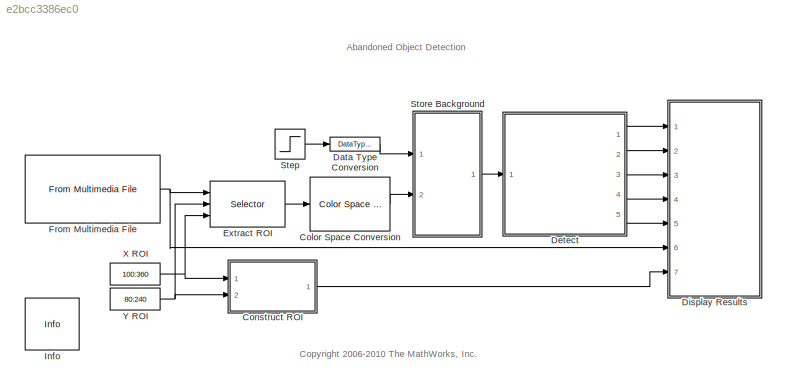
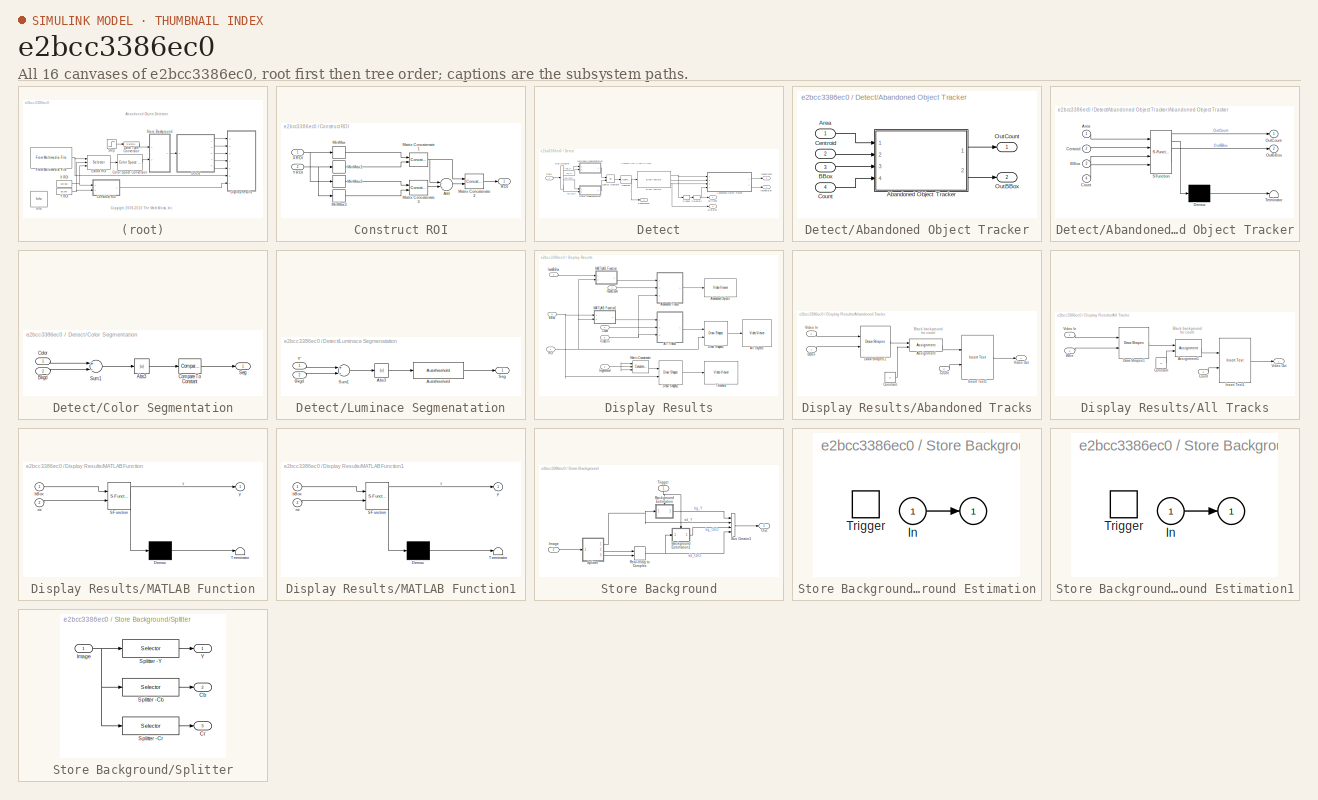
[diagram: thumbnail index - all 16 canvases of the model, root first then tree order]
MODEL slx_e2bcc3386ec0
KIND model
WORKSPACE source: MATLAB code (in-file)
WORKSPACE maxNumObj = 200
BLOCK [Reference] Color Space Conversion  REF=visionconversions/Color Space
 Conversion
  Ports = [1, 1]
  SourceBlock = visionconversions/Color Space\n Conversion
  SourceType = Color Space Conversion
  conversion = Obsolete
  conversionActive = R'G'B' to Y'CbCr
  imagePorts = One multidimensional signal
  rec = Rec. 601 (SDTV)
  sys = 1125/60/2:1
  wp_str = D65
BLOCK [SubSystem] Construct ROI
  FunctionWithSeparateData = off
  MaskHideContents = off
  MinAlgLoopOccurrences = off
  Opaque = off
  Ports = [2, 1]
  PropExecContextOutsideSubsystem = off
  RTWSystemCode = Auto
  RequestExecContextInheritance = off
BLOCK [Sum] Construct ROI/Add
  InputSameDT = off
  Inputs = -+
  OutDataTypeStr = Inherit: Inherit via internal rule
  Ports = [2, 1]
  SaturateOnIntegerOverflow = off
BLOCK [Concatenate] Construct ROI/Matrix Concatenate1
  ConcatenateDimension = 2
  Mode = Multidimensional array
  Ports = [2, 1]
BLOCK [Concatenate] Construct ROI/Matrix Concatenate2
  ConcatenateDimension = 2
  Mode = Multidimensional array
  Ports = [2, 1]
BLOCK [Concatenate] Construct ROI/Matrix Concatenate3
  ConcatenateDimension = 2
  Mode = Multidimensional array
  Ports = [2, 1]
BLOCK [MinMax] Construct ROI/MinMax
  InputSameDT = off
  Ports = [1, 1]
  SaturateOnIntegerOverflow = off
BLOCK [MinMax] Construct ROI/MinMax1
  InputSameDT = off
  Ports = [1, 1]
  SaturateOnIntegerOverflow = off
BLOCK [MinMax] Construct ROI/MinMax2
  Function = max
  InputSameDT = off
  Ports = [1, 1]
  SaturateOnIntegerOverflow = off
BLOCK [MinMax] Construct ROI/MinMax3
  Function = max
  InputSameDT = off
  Ports = [1, 1]
  SaturateOnIntegerOverflow = off
BLOCK [Outport] Construct ROI/ROI
  IconDisplay = Port number
BLOCK [Inport] Construct ROI/X ROI 
  IconDisplay = Port number
BLOCK [Inport] Construct ROI/Y ROI
  IconDisplay = Port number
  Port = 2
BLOCK [DataTypeConversion] Data Type Conversion
  OutDataTypeStr = boolean
  RndMeth = Floor
  SaturateOnIntegerOverflow = off
BLOCK [SubSystem] Detect
  FunctionWithSeparateData = off
  MaskHideContents = off
  MinAlgLoopOccurrences = off
  Opaque = off
  Ports = [1, 5]
  PropExecContextOutsideSubsystem = off
  RTWMemSecDataConstants = Default
  RTWMemSecDataInternal = Default
  RTWMemSecDataParameters = Default
  RTWMemSecFuncExecute = Default
  RTWMemSecFuncInitTerm = Default
  RTWSystemCode = Auto
  RequestExecContextInheritance = off
  TreatAsAtomicUnit = on
BLOCK [SubSystem] Detect/Abandoned Object Tracker
  FunctionWithSeparateData = off
  MaskHideContents = off
  MinAlgLoopOccurrences = off
  Opaque = off
  Ports = [4, 2]
  PropExecContextOutsideSubsystem = off
  RTWSystemCode = Auto
  RequestExecContextInheritance = off
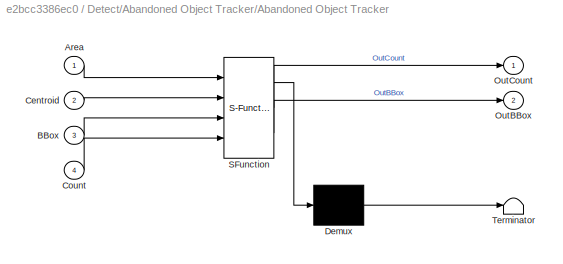
BLOCK [SubSystem] Detect/Abandoned Object Tracker/Abandoned Object Tracker
  ErrorFcn = Stateflow.Translate.translate
  FunctionWithSeparateData = off
  MaskHideContents = off
  MinAlgLoopOccurrences = off
  Opaque = off
  PermitHierarchicalResolution = ExplicitOnly
  Ports = [4, 2]
  PropExecContextOutsideSubsystem = off
  RTWSystemCode = Auto
  RequestExecContextInheritance = off
  SFBlockType = MATLAB Function
  TreatAsAtomicUnit = on
BLOCK [Demux] Detect/Abandoned Object Tracker/Abandoned Object Tracker/ Demux 
  Outputs = 1
  Ports = [1, 1]
BLOCK [S-Function] Detect/Abandoned Object Tracker/Abandoned Object Tracker/ SFunction 
  EnableBusSupport = off
  FunctionName = sf_sfun
  Parameters = alarmCount,areaChangeFraction,centroidChangeFraction,maxConsecutiveMiss,maxNumObj,minPersistenceRatio
  PortCounts = [4 3]
  Ports = [4, 3]
  Tag = Stateflow S-Function vipabandonedobj 4
BLOCK [Terminator] Detect/Abandoned Object Tracker/Abandoned Object Tracker/ Terminator 
BLOCK [Inport] Detect/Abandoned Object Tracker/Abandoned Object Tracker/Area
  IconDisplay = Port number
BLOCK [Inport] Detect/Abandoned Object Tracker/Abandoned Object Tracker/BBox
  IconDisplay = Port number
  Port = 3
BLOCK [Inport] Detect/Abandoned Object Tracker/Abandoned Object Tracker/Centroid
  IconDisplay = Port number
  Port = 2
BLOCK [Inport] Detect/Abandoned Object Tracker/Abandoned Object Tracker/Count
  IconDisplay = Port number
  Port = 4
BLOCK [Outport] Detect/Abandoned Object Tracker/Abandoned Object Tracker/OutBBox
  IconDisplay = Port number
  Port = 2
BLOCK [Outport] Detect/Abandoned Object Tracker/Abandoned Object Tracker/OutCount
  IconDisplay = Port number
BLOCK [Inport] Detect/Abandoned Object Tracker/Area
  IconDisplay = Port number
BLOCK [Inport] Detect/Abandoned Object Tracker/BBox
  IconDisplay = Port number
  Port = 3
BLOCK [Inport] Detect/Abandoned Object Tracker/Centroid
  IconDisplay = Port number
  Port = 2
BLOCK [Inport] Detect/Abandoned Object Tracker/Count
  IconDisplay = Port number
  Port = 4
BLOCK [Outport] Detect/Abandoned Object Tracker/OutBBox
  IconDisplay = Port number
  Port = 2
BLOCK [Outport] Detect/Abandoned Object Tracker/OutCount
  IconDisplay = Port number
BLOCK [Reference] Detect/Blob Analysis  REF=visionstatistics/Blob Analysis
  LockScale = off
  Ports = [1, 3]
  SourceBlock = visionstatistics/Blob Analysis
  SourceType = Blob Analysis
  Tag = vipblks_row_conv
  accumFracLength = 0
  accumMode = Binary point scaling
  accumWordLength = 32
  angle = off
  area = on
  bBox = on
  centroid = on
  conn = 8
  eccentricity = off
  equivDiameterSq = off
  excludeBorderBlob = on
  extent = off
  fillValues = -1
  firstCoeffFracLength = 14
  firstCoeffMode = Binary point scaling
  firstCoeffWordLength = 16
  isCount = off
  isFill = on
  isLabel = off
  isOutVarDim = on
  majorAxis = off
  maxArea = 2500
  maxBlobs = maxNumObj
  memoryFracLength = 16
  memoryMode = Same as product output
  memoryWordLength = 32
  minArea = 100
  minorAxis = off
  outDT = double
  outputFracLength = 16
  outputMode = Binary point scaling
  outputWordLength = 32
  overflowMode = off
  perimeter = off
  prodOutputFracLength = 16
  prodOutputMode = Binary point scaling
  prodOutputWordLength = 32
  roundingMode = Floor
  secondCoeffFracLength = 16
  secondCoeffMode = Binary point scaling
  secondCoeffWordLength = 32
  useMaxArea = on
  useMinArea = on
  warnIfNumBlobsExceeded = on
BLOCK [BusSelector] Detect/Bus Selector
  OutputSignals = vid_Y,bg_Y,vid_CbCr,bg_CbCr
  Ports = [1, 4]
BLOCK [SubSystem] Detect/Color Segmentation
  FunctionWithSeparateData = off
  MaskHideContents = off
  MinAlgLoopOccurrences = off
  Opaque = off
  Ports = [2, 1]
  PropExecContextOutsideSubsystem = off
  RTWMemSecDataConstants = Default
  RTWMemSecDataInternal = Default
  RTWMemSecDataParameters = Default
  RTWMemSecFuncExecute = Default
  RTWMemSecFuncInitTerm = Default
  RTWSystemCode = Auto
  RequestExecContextInheritance = off
BLOCK [Abs] Detect/Color Segmentation/Abs3
BLOCK [Inport] Detect/Color Segmentation/Bkgd
  IconDisplay = Port number
  Port = 2
BLOCK [Inport] Detect/Color Segmentation/Color
  IconDisplay = Port number
BLOCK [Reference] Detect/Color Segmentation/Compare To Constant  REF=simulink/Logic and Bit
Operations/Compare
To Constant
  OutDataTypeStr = boolean
  Ports = [1, 1]
  SourceBlock = simulink/Logic and Bit\nOperations/Compare\nTo Constant
  SourceType = Compare To Constant
  ZeroCross = off
  const = 0.05
  relop = >
BLOCK [Outport] Detect/Color Segmentation/Seg
  IconDisplay = Port number
BLOCK [Sum] Detect/Color Segmentation/Sum1
  Inputs = +-
  Ports = [2, 1]
BLOCK [Inport] Detect/Data
  IconDisplay = Port number
BLOCK [Logic] Detect/Logical Operator
  AllPortsSameDT = off
  Operator = OR
  OutDataTypeStr = boolean
  Ports = [2, 1]
BLOCK [SubSystem] Detect/Luminace Segmenatation
  FunctionWithSeparateData = off
  MaskHideContents = off
  MinAlgLoopOccurrences = off
  Opaque = off
  Ports = [2, 1]
  PropExecContextOutsideSubsystem = off
  RTWMemSecDataConstants = Default
  RTWMemSecDataInternal = Default
  RTWMemSecDataParameters = Default
  RTWMemSecFuncExecute = Default
  RTWMemSecFuncInitTerm = Default
  RTWSystemCode = Auto
  RequestExecContextInheritance = off
BLOCK [Abs] Detect/Luminace Segmenatation/Abs3
BLOCK [Reference] Detect/Luminace Segmenatation/Autothreshold  REF=visionconversions/Autothreshold
  A1FracLength = 30
  A1Mode = Same as Product 1
  A1WordLength = 32
  A2FracLength = 22
  A2Mode = Same as Product 2
  A2WordLength = 32
  A3FracLength = 14
  A3Mode = Same as Product 3
  A3WordLength = 32
  A4FracLength = 4
  A4Mode = Same as Product 4
  A4WordLength = 16
  EMFracLength = 14
  EMMode = Specify word length
  EMWordLength = 16
  LockScale = off
  P1FracLength = 30
  P1Mode = Specify word length
  P1WordLength = 32
  P2FracLength = 22
  P2Mode = Specify word length
  P2WordLength = 32
  P3FracLength = 14
  P3Mode = Specify word length
  P3WordLength = 32
  P4FracLength = 15
  P4Mode = Binary point scaling
  P4WordLength = 32
  Ports = [1, 1]
  Q1FracLength = 16
  Q1Mode = Specify word length
  Q1WordLength = 32
  SourceBlock = visionconversions/Autothreshold
  SourceType = Autothreshold
  effMetricOut = off
  operator = >
  outOfRngOpt = Warn and saturate
  overflowMode = off
  roundingMode = Floor
  scaleFactor = 1.3
  scaleThreshold = on
  threshOut = off
  umax = 100
  umin = 0
  userDefinedRange = off
BLOCK [Inport] Detect/Luminace Segmenatation/Bkgd
  IconDisplay = Port number
  Port = 2
BLOCK [Outport] Detect/Luminace Segmenatation/Seg
  IconDisplay = Port number
BLOCK [Sum] Detect/Luminace Segmenatation/Sum1
  Inputs = +-
  Ports = [2, 1]
BLOCK [Inport] Detect/Luminace Segmenatation/Y'
  IconDisplay = Port number
BLOCK [Reference] Detect/Opening  REF=visionmorphops/Opening
  Ports = [1, 1]
  SourceBlock = visionmorphops/Opening
  SourceType = Opening
  nhoodsrc = Specify via dialog
  strel = strel('square',3)
BLOCK [Probe] Detect/Probe1
  Ports = [1, 1]
  ProbeComplexSignal = off
  ProbeDimensionsDataType = int32
  ProbeSampleTime = off
  ProbeSignalDimensions = on
  ProbeWidth = off
BLOCK [Outport] Detect/Segmented
  IconDisplay = Port number
  Port = 5
BLOCK [Selector] Detect/Selector1
  IndexOptions = Index vector (dialog)
  Indices = 1
  InputPortWidth = 2
  OutputSizes = 1
  Ports = [1, 1]
BLOCK [Outport] Detect/allBBox
  IconDisplay = Port number
  Port = 3
BLOCK [Outport] Detect/allCount
  IconDisplay = Port number
  Port = 4
BLOCK [Outport] Detect/foundBBox
  IconDisplay = Port number
BLOCK [Outport] Detect/foundCount
  IconDisplay = Port number
  Port = 2
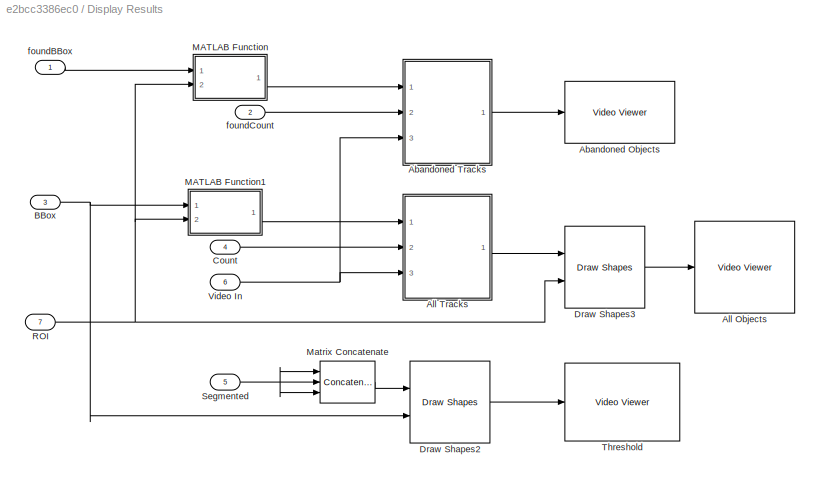
BLOCK [SubSystem] Display Results
  FunctionWithSeparateData = off
  MaskHideContents = off
  MinAlgLoopOccurrences = off
  Opaque = off
  Ports = [7]
  PropExecContextOutsideSubsystem = off
  RTWMemSecDataConstants = Default
  RTWMemSecDataInternal = Default
  RTWMemSecDataParameters = Default
  RTWMemSecFuncExecute = Default
  RTWMemSecFuncInitTerm = Default
  RTWSystemCode = Auto
  RequestExecContextInheritance = off
BLOCK [Reference] Display Results/Abandoned Objects  REF=visionsinks/Video Viewer
  AxisZoom = on
  DefaultConfigurationName = vipscopes.VideoViewerScopeCfg
  FigPos = [629 387 362 261]
  OpenAtMdlStart = on
  Ports = [1]
  SourceBlock = visionsinks/Video Viewer
  SourceType = Video Viewer
  UserDataPersistent = on
  colormapValue = gray(256)
  imagePorts = One multidimensional signal
  inputType = Obsolete7b
  maxInputVal = 255
  minInputVal = 0
  specRange = off
  trueSizedOnce = on
  useColorMap = off
BLOCK [SubSystem] Display Results/Abandoned Tracks
  FunctionWithSeparateData = off
  MaskHideContents = off
  MinAlgLoopOccurrences = off
  Opaque = off
  Ports = [3, 1]
  PropExecContextOutsideSubsystem = off
  RTWMemSecDataConstants = Default
  RTWMemSecDataInternal = Default
  RTWMemSecDataParameters = Default
  RTWMemSecFuncExecute = Default
  RTWMemSecFuncInitTerm = Default
  RTWSystemCode = Auto
  RequestExecContextInheritance = off
BLOCK [Assignment] Display Results/Abandoned Tracks/Assignment
  IndexOptions = Index vector (dialog),Index vector (dialog),Assign all
  Indices = [1:15],[1:30],[]
  NumberOfDimensions = 3
  OutputSizes = 1, 1
  Ports = [2, 1]
BLOCK [Inport] Display Results/Abandoned Tracks/BBox
  IconDisplay = Port number
BLOCK [Constant] Display Results/Abandoned Tracks/Constant
  OutDataTypeStr = Inherit: Inherit via back propagation
  Value = 0
  VectorParams1D = off
BLOCK [Inport] Display Results/Abandoned Tracks/Count
  IconDisplay = Port number
  Port = 2
BLOCK [Reference] Display Results/Abandoned Tracks/Draw Shapes1  REF=visiontextngfix/Draw Shapes
  LockScale = off
  Ports = [2, 1]
  SourceBlock = visiontextngfix/Draw Shapes
  SourceType = Draw Shapes
  accumFracLength = 14
  accumMode = Same as product output
  accumWordLength = 32
  antialiasing = off
  color = [1 0 0]
  display = User-specified value
  fill = on
  fillClrSource = Specify via dialog
  imagePorts = One multidimensional signal
  inType = Obsolete
  intensity = 200
  memoryFracLength = 14
  memoryMode = Specify word length
  memoryWordLength = 16
  opacity = 0.5
  overflowMode = off
  prodOutputFracLength = 14
  prodOutputMode = Binary point scaling
  prodOutputWordLength = 32
  roundingMode = Floor
  shape = Rectangles
  viewport = Entire image
BLOCK [Reference] Display Results/Abandoned Tracks/Insert Text1  REF=visiontextngfix/Insert Text
  Ports = [2, 1]
  SourceBlock = visiontextngfix/Insert Text
  SourceType = Insert Text
  antiAliased = on
  blockFontSize = 12
  dummyVar1 = 0
  dummyVar2 = 0
  dummyVar3 = 0
  dummyVar4 = 0
  fontFace = LucidaSansRegular
  getTextColorFrom = Specify via dialog
  getTextIntensityFrom = Specify via dialog
  getTextLocFrom = Specify via dialog
  getTextOpacityFrom = Specify via dialog
  imagePorts = One multidimensional signal
  inputType = Obsolete
  isInputTransposed = off
  textColor = [1 1 1]
  textIntensity = 0
  textLoc = [0 0]
  textOpacity = 1.0
  theText = '%4d'
BLOCK [Inport] Display Results/Abandoned Tracks/Video In
  IconDisplay = Port number
  Port = 3
BLOCK [Outport] Display Results/Abandoned Tracks/Video Out
  IconDisplay = Port number
BLOCK [Reference] Display Results/All Objects  REF=visionsinks/Video Viewer
  AxisZoom = on
  DefaultConfigurationName = vipscopes.VideoViewerScopeCfg
  FigPos = [75 390 360 261]
  OpenAtMdlStart = on
  Ports = [1]
  SourceBlock = visionsinks/Video Viewer
  SourceType = Video Viewer
  UserDataPersistent = on
  colormapValue = gray(256)
  imagePorts = One multidimensional signal
  inputType = Obsolete7b
  maxInputVal = 255
  minInputVal = 0
  specRange = off
  trueSizedOnce = on
  useColorMap = off
BLOCK [SubSystem] Display Results/All Tracks
  FunctionWithSeparateData = off
  MaskHideContents = off
  MinAlgLoopOccurrences = off
  Opaque = off
  Ports = [3, 1]
  PropExecContextOutsideSubsystem = off
  RTWMemSecDataConstants = Default
  RTWMemSecDataInternal = Default
  RTWMemSecDataParameters = Default
  RTWMemSecFuncExecute = Default
  RTWMemSecFuncInitTerm = Default
  RTWSystemCode = Auto
  RequestExecContextInheritance = off
BLOCK [Assignment] Display Results/All Tracks/Assignment1
  IndexOptions = Index vector (dialog),Index vector (dialog),Assign all
  Indices = [1:15],[1:30],[]
  NumberOfDimensions = 3
  OutputSizes = 1, 1
  Ports = [2, 1]
BLOCK [Inport] Display Results/All Tracks/BBox
  IconDisplay = Port number
BLOCK [Constant] Display Results/All Tracks/Constant
  OutDataTypeStr = Inherit: Inherit via back propagation
  Value = 0
  VectorParams1D = off
BLOCK [Inport] Display Results/All Tracks/Count
  IconDisplay = Port number
  Port = 2
BLOCK [Reference] Display Results/All Tracks/Draw Shapes1  REF=visiontextngfix/Draw Shapes
  LockScale = off
  Ports = [2, 1]
  SourceBlock = visiontextngfix/Draw Shapes
  SourceType = Draw Shapes
  accumFracLength = 14
  accumMode = Same as product output
  accumWordLength = 32
  antialiasing = off
  color = [0 1 0]
  display = User-specified value
  fill = off
  fillClrSource = Specify via dialog
  imagePorts = One multidimensional signal
  inType = Obsolete
  intensity = 200
  memoryFracLength = 14
  memoryMode = Specify word length
  memoryWordLength = 16
  opacity = 0.5
  overflowMode = off
  prodOutputFracLength = 14
  prodOutputMode = Binary point scaling
  prodOutputWordLength = 32
  roundingMode = Floor
  shape = Rectangles
  viewport = Entire image
BLOCK [Reference] Display Results/All Tracks/Insert Text1  REF=visiontextngfix/Insert Text
  Ports = [2, 1]
  SourceBlock = visiontextngfix/Insert Text
  SourceType = Insert Text
  antiAliased = on
  blockFontSize = 12
  dummyVar1 = 0
  dummyVar2 = 0
  dummyVar3 = 0
  dummyVar4 = 0
  fontFace = LucidaSansRegular
  getTextColorFrom = Specify via dialog
  getTextIntensityFrom = Specify via dialog
  getTextLocFrom = Specify via dialog
  getTextOpacityFrom = Specify via dialog
  imagePorts = One multidimensional signal
  inputType = Obsolete
  isInputTransposed = off
  textColor = [1 1 1]
  textIntensity = 0
  textLoc = [0 0]
  textOpacity = 1.0
  theText = '%4d'
BLOCK [Inport] Display Results/All Tracks/Video In
  IconDisplay = Port number
  Port = 3
BLOCK [Outport] Display Results/All Tracks/Video Out
  IconDisplay = Port number
BLOCK [Inport] Display Results/BBox
  IconDisplay = Port number
  Port = 3
BLOCK [Inport] Display Results/Count
  IconDisplay = Port number
  Port = 4
BLOCK [Reference] Display Results/Draw Shapes2  REF=visiontextngfix/Draw Shapes
  LockScale = off
  Ports = [2, 1]
  SourceBlock = visiontextngfix/Draw Shapes
  SourceType = Draw Shapes
  accumFracLength = 14
  accumMode = Same as product output
  accumWordLength = 32
  antialiasing = off
  color = [0 1 0]
  display = User-specified value
  fill = off
  fillClrSource = Specify via dialog
  imagePorts = One multidimensional signal
  inType = Obsolete
  intensity = 200
  memoryFracLength = 14
  memoryMode = Specify word length
  memoryWordLength = 16
  opacity = 0.5
  overflowMode = off
  prodOutputFracLength = 14
  prodOutputMode = Binary point scaling
  prodOutputWordLength = 32
  roundingMode = Floor
  shape = Rectangles
  viewport = Entire image
BLOCK [Reference] Display Results/Draw Shapes3  REF=visiontextngfix/Draw Shapes
  LockScale = off
  Ports = [2, 1]
  SourceBlock = visiontextngfix/Draw Shapes
  SourceType = Draw Shapes
  accumFracLength = 14
  accumMode = Same as product output
  accumWordLength = 32
  antialiasing = off
  color = [1 1 0]
  display = User-specified value
  fill = off
  fillClrSource = Specify via dialog
  imagePorts = One multidimensional signal
  inType = Obsolete
  intensity = 200
  memoryFracLength = 14
  memoryMode = Specify word length
  memoryWordLength = 16
  opacity = 0.5
  overflowMode = off
  prodOutputFracLength = 14
  prodOutputMode = Binary point scaling
  prodOutputWordLength = 32
  roundingMode = Floor
  shape = Rectangles
  viewport = Entire image
BLOCK [SubSystem] Display Results/MATLAB Function
  ErrorFcn = Stateflow.Translate.translate
  FunctionWithSeparateData = off
  MaskHideContents = off
  MinAlgLoopOccurrences = off
  Opaque = off
  PermitHierarchicalResolution = ExplicitOnly
  Ports = [2, 1]
  PropExecContextOutsideSubsystem = off
  RTWSystemCode = Auto
  RequestExecContextInheritance = off
  SFBlockType = MATLAB Function
  TreatAsAtomicUnit = on
BLOCK [Demux] Display Results/MATLAB Function/ Demux 
  Outputs = 1
  Ports = [1, 1]
BLOCK [S-Function] Display Results/MATLAB Function/ SFunction 
  EnableBusSupport = off
  FunctionName = sf_sfun
  PortCounts = [2 2]
  Ports = [2, 2]
  Tag = Stateflow S-Function vipabandonedobj 5
BLOCK [Terminator] Display Results/MATLAB Function/ Terminator 
BLOCK [Inport] Display Results/MATLAB Function/bBox
  IconDisplay = Port number
BLOCK [Inport] Display Results/MATLAB Function/roi
  IconDisplay = Port number
  Port = 2
BLOCK [Outport] Display Results/MATLAB Function/y
  IconDisplay = Port number
BLOCK [SubSystem] Display Results/MATLAB Function1
  ErrorFcn = Stateflow.Translate.translate
  FunctionWithSeparateData = off
  MaskHideContents = off
  MinAlgLoopOccurrences = off
  Opaque = off
  PermitHierarchicalResolution = ExplicitOnly
  Ports = [2, 1]
  PropExecContextOutsideSubsystem = off
  RTWSystemCode = Auto
  RequestExecContextInheritance = off
  SFBlockType = MATLAB Function
  TreatAsAtomicUnit = on
BLOCK [Demux] Display Results/MATLAB Function1/ Demux 
  Outputs = 1
  Ports = [1, 1]
BLOCK [S-Function] Display Results/MATLAB Function1/ SFunction 
  EnableBusSupport = off
  FunctionName = sf_sfun
  PortCounts = [2 2]
  Ports = [2, 2]
  Tag = Stateflow S-Function vipabandonedobj 6
BLOCK [Terminator] Display Results/MATLAB Function1/ Terminator 
BLOCK [Inport] Display Results/MATLAB Function1/bBox
  IconDisplay = Port number
BLOCK [Inport] Display Results/MATLAB Function1/roi
  IconDisplay = Port number
  Port = 2
BLOCK [Outport] Display Results/MATLAB Function1/y
  IconDisplay = Port number
BLOCK [Concatenate] Display Results/Matrix Concatenate
  ConcatenateDimension = 3
  Mode = Multidimensional array
  NumInputs = 3
  Ports = [3, 1]
BLOCK [Inport] Display Results/ROI
  IconDisplay = Port number
  Port = 7
BLOCK [Inport] Display Results/Segmented
  IconDisplay = Port number
  Port = 5
BLOCK [Reference] Display Results/Threshold  REF=visionsinks/Video Viewer
  AxisZoom = on
  DefaultConfigurationName = vipscopes.VideoViewerScopeCfg
  FigPos = [72 704 261 183]
  OpenAtMdlStart = on
  Ports = [1]
  SourceBlock = visionsinks/Video Viewer
  SourceType = Video Viewer
  UserDataPersistent = on
  colormapValue = gray(256)
  imagePorts = One multidimensional signal
  inputType = Obsolete7b
  maxInputVal = 255
  minInputVal = 0
  specRange = off
  trueSizedOnce = on
  useColorMap = off
BLOCK [Inport] Display Results/Video In
  IconDisplay = Port number
  Port = 6
BLOCK [Inport] Display Results/foundBBox
  IconDisplay = Port number
BLOCK [Inport] Display Results/foundCount
  IconDisplay = Port number
  Port = 2
BLOCK [Selector] Extract ROI
  IndexOptions = Index vector (port),Index vector (port),Select all
  Indices = [roi(1):roi(3)],[roi(2):roi(4)],[]
  NumberOfDimensions = 3
  OutputSizes = 1
  Ports = [3, 1]
BLOCK [Reference] From Multimedia File  REF=dspvision/From Multimedia File
  Ports = [0, 1]
  SourceBlock = dspvision/From Multimedia File
  SourceType = From Multimedia File
  audioDataType = int16
  audioFrameSize = 1024
  colorVideoFormat = One multidimensional signal
  computeAudioFrameSize = off
  dataOrg = Column-major
  fourcc = RGB
  inheritSampleTime = on
  inputFilename = viptrain.avi
  isIntensityVideo = off
  loop = on
  noAudioOutput = off
  numPlays = inf
  outSamplingMode = Frame based
  outputEOF = off
  outputStreams = Video only
  userDefinedSampleTime = 1/30
  videoDataType = single
BLOCK [Reference] Info  REF=vipmisc/Info
  FunctionWithSeparateData = off
  GeneratePreprocessorConditionals = off
  Ports = []
  ShowPortLabels = FromPortIcon
  SourceBlock = vipmisc/Info
  SourceType = Info
  SystemSampleTime = -1
BLOCK [Step] Step
  Time = eps
BLOCK [SubSystem] Store Background
  FunctionWithSeparateData = off
  MaskHideContents = off
  MinAlgLoopOccurrences = off
  Opaque = off
  Ports = [2, 1]
  PropExecContextOutsideSubsystem = off
  RTWSystemCode = Auto
  RequestExecContextInheritance = off
BLOCK [SubSystem] Store Background/Background Estimation
  FunctionWithSeparateData = off
  MaskHideContents = off
  MinAlgLoopOccurrences = off
  Opaque = off
  Ports = [1, 1, 0, 1]
  PropExecContextOutsideSubsystem = off
  RTWSystemCode = Auto
  RequestExecContextInheritance = off
  TreatAsAtomicUnit = on
BLOCK [Outport] Store Background/Background Estimation/ 
  IconDisplay = Port number
  InitialOutput = initCond
BLOCK [Inport] Store Background/Background Estimation/In
  IconDisplay = Port number
BLOCK [TriggerPort] Store Background/Background Estimation/Trigger
  Ports = []
  ZeroCross = off
BLOCK [SubSystem] Store Background/Background Estimation1
  FunctionWithSeparateData = off
  MaskHideContents = off
  MinAlgLoopOccurrences = off
  Opaque = off
  Ports = [1, 1, 0, 1]
  PropExecContextOutsideSubsystem = off
  RTWSystemCode = Auto
  RequestExecContextInheritance = off
  TreatAsAtomicUnit = on
BLOCK [Outport] Store Background/Background Estimation1/ 
  IconDisplay = Port number
  InitialOutput = initCond
BLOCK [Inport] Store Background/Background Estimation1/In
  IconDisplay = Port number
BLOCK [TriggerPort] Store Background/Background Estimation1/Trigger
  Ports = []
  ZeroCross = off
BLOCK [BusCreator] Store Background/Bus Creator1
  DisplayOption = bar
  Ports = [4, 1]
BLOCK [Inport] Store Background/Image
  IconDisplay = Port number
  Port = 2
BLOCK [Outport] Store Background/Out
  IconDisplay = Port number
BLOCK [RealImagToComplex] Store Background/Real-Imag to Complex
  Ports = [2, 1]
BLOCK [SubSystem] Store Background/Splitter
  FunctionWithSeparateData = off
  MaskHideContents = off
  MinAlgLoopOccurrences = off
  Opaque = off
  Ports = [1, 3]
  PropExecContextOutsideSubsystem = off
  RTWSystemCode = Auto
  RequestExecContextInheritance = off
BLOCK [Outport] Store Background/Splitter/Cb
  IconDisplay = Port number
  Port = 2
BLOCK [Outport] Store Background/Splitter/Cr
  IconDisplay = Port number
  Port = 3
BLOCK [Inport] Store Background/Splitter/Image
  IconDisplay = Port number
BLOCK [Selector] Store Background/Splitter/Splitter -Cb
  IndexOptions = Select all,Select all,Index vector (dialog)
  Indices = [],[],[2]
  NumberOfDimensions = 3
  OutputSizes = 1
  Ports = [1, 1]
BLOCK [Selector] Store Background/Splitter/Splitter -Cr
  IndexOptions = Select all,Select all,Index vector (dialog)
  Indices = [],[],[3]
  NumberOfDimensions = 3
  OutputSizes = 1
  Ports = [1, 1]
BLOCK [Selector] Store Background/Splitter/Splitter -Y
  IndexOptions = Select all,Select all,Index vector (dialog)
  Indices = [],[],[1]
  NumberOfDimensions = 3
  OutputSizes = 1
  Ports = [1, 1]
BLOCK [Outport] Store Background/Splitter/Y
  IconDisplay = Port number
BLOCK [Inport] Store Background/Trigger
  IconDisplay = Port number
BLOCK [Constant] X ROI
  Value = 100:360
BLOCK [Constant] Y ROI
  Value = 80:240
ANNOTATION (root): Abandoned Object Detection
ANNOTATION (root): <copyright redacted>
ANNOTATION Detect: Changed from Close to Open
ANNOTATION Display Results/Abandoned Tracks: Black background for count
ANNOTATION Display Results/All Tracks: Black background for count
LINE Color Space Conversion:1 -> Store Background:2
LINE Construct ROI/Add:1 -> Construct ROI/Matrix Concatenate2:2
NET Construct ROI/Matrix Concatenate1:1 -> Construct ROI/Add:1, Construct ROI/Matrix Concatenate2:1
LINE Construct ROI/Matrix Concatenate2:1 -> Construct ROI/ROI:1
LINE Construct ROI/Matrix Concatenate3:1 -> Construct ROI/Add:2
LINE Construct ROI/MinMax1:1 -> Construct ROI/Matrix Concatenate1:2
LINE Construct ROI/MinMax2:1 -> Construct ROI/Matrix Concatenate3:1
LINE Construct ROI/MinMax3:1 -> Construct ROI/Matrix Concatenate3:2
LINE Construct ROI/MinMax:1 -> Construct ROI/Matrix Concatenate1:1
NET Construct ROI/X ROI :1 -> Construct ROI/MinMax2:1, Construct ROI/MinMax:1
NET Construct ROI/Y ROI:1 -> Construct ROI/MinMax1:1, Construct ROI/MinMax3:1
LINE Construct ROI:1 -> Display Results:7
LINE Data Type Conversion:1 -> Store Background:1
LINE Detect/Abandoned Object Tracker/Abandoned Object Tracker:1 -> Detect/Abandoned Object Tracker/OutCount:1
LINE Detect/Abandoned Object Tracker/Abandoned Object Tracker:2 -> Detect/Abandoned Object Tracker/OutBBox:1
LINE Detect/Abandoned Object Tracker/Area:1 -> Detect/Abandoned Object Tracker/Abandoned Object Tracker:1
LINE Detect/Abandoned Object Tracker/BBox:1 -> Detect/Abandoned Object Tracker/Abandoned Object Tracker:3
LINE Detect/Abandoned Object Tracker/Centroid:1 -> Detect/Abandoned Object Tracker/Abandoned Object Tracker:2
LINE Detect/Abandoned Object Tracker/Count:1 -> Detect/Abandoned Object Tracker/Abandoned Object Tracker:4
LINE Detect/Abandoned Object Tracker:1 -> Detect/foundCount:1
LINE Detect/Abandoned Object Tracker:2 -> Detect/foundBBox:1
NET Detect/Blob Analysis:1 -> Detect/Abandoned Object Tracker:1, Detect/Probe1:1
LINE Detect/Blob Analysis:2 -> Detect/Abandoned Object Tracker:2
NET Detect/Blob Analysis:3 -> Detect/Abandoned Object Tracker:3, Detect/allBBox:1
LINE Detect/Bus Selector:1 -> Detect/Luminace Segmenatation:1
LINE Detect/Bus Selector:2 -> Detect/Luminace Segmenatation:2
LINE Detect/Bus Selector:3 -> Detect/Color Segmentation:1
LINE Detect/Bus Selector:4 -> Detect/Color Segmentation:2
LINE Detect/Color Segmentation/Abs3:1 -> Detect/Color Segmentation/Compare To Constant:1
LINE Detect/Color Segmentation/Bkgd:1 -> Detect/Color Segmentation/Sum1:2
LINE Detect/Color Segmentation/Color:1 -> Detect/Color Segmentation/Sum1:1
LINE Detect/Color Segmentation/Compare To Constant:1 -> Detect/Color Segmentation/Seg:1
LINE Detect/Color Segmentation/Sum1:1 -> Detect/Color Segmentation/Abs3:1
LINE Detect/Color Segmentation:1 -> Detect/Logical Operator:2
LINE Detect/Data:1 -> Detect/Bus Selector:1
LINE Detect/Logical Operator:1 -> Detect/Opening:1
LINE Detect/Luminace Segmenatation/Abs3:1 -> Detect/Luminace Segmenatation/Autothreshold:1
LINE Detect/Luminace Segmenatation/Autothreshold:1 -> Detect/Luminace Segmenatation/Seg:1
LINE Detect/Luminace Segmenatation/Bkgd:1 -> Detect/Luminace Segmenatation/Sum1:2
LINE Detect/Luminace Segmenatation/Sum1:1 -> Detect/Luminace Segmenatation/Abs3:1
LINE Detect/Luminace Segmenatation/Y':1 -> Detect/Luminace Segmenatation/Sum1:1
LINE Detect/Luminace Segmenatation:1 -> Detect/Logical Operator:1
NET Detect/Opening:1 -> Detect/Blob Analysis:1, Detect/Segmented:1
LINE Detect/Probe1:1 -> Detect/Selector1:1
NET Detect/Selector1:1 -> Detect/Abandoned Object Tracker:4, Detect/allCount:1
LINE Detect:1 -> Display Results:1
LINE Detect:2 -> Display Results:2
LINE Detect:3 -> Display Results:3
LINE Detect:4 -> Display Results:4
LINE Detect:5 -> Display Results:5
LINE Display Results/Abandoned Tracks/Assignment:1 -> Display Results/Abandoned Tracks/Insert Text1:1
LINE Display Results/Abandoned Tracks/BBox:1 -> Display Results/Abandoned Tracks/Draw Shapes1:2
LINE Display Results/Abandoned Tracks/Constant:1 -> Display Results/Abandoned Tracks/Assignment:2
LINE Display Results/Abandoned Tracks/Count:1 -> Display Results/Abandoned Tracks/Insert Text1:2
LINE Display Results/Abandoned Tracks/Draw Shapes1:1 -> Display Results/Abandoned Tracks/Assignment:1
LINE Display Results/Abandoned Tracks/Insert Text1:1 -> Display Results/Abandoned Tracks/Video Out:1
LINE Display Results/Abandoned Tracks/Video In:1 -> Display Results/Abandoned Tracks/Draw Shapes1:1
LINE Display Results/Abandoned Tracks:1 -> Display Results/Abandoned Objects:1
LINE Display Results/All Tracks/Assignment1:1 -> Display Results/All Tracks/Insert Text1:1
LINE Display Results/All Tracks/BBox:1 -> Display Results/All Tracks/Draw Shapes1:2
LINE Display Results/All Tracks/Constant:1 -> Display Results/All Tracks/Assignment1:2
LINE Display Results/All Tracks/Count:1 -> Display Results/All Tracks/Insert Text1:2
LINE Display Results/All Tracks/Draw Shapes1:1 -> Display Results/All Tracks/Assignment1:1
LINE Display Results/All Tracks/Insert Text1:1 -> Display Results/All Tracks/Video Out:1
LINE Display Results/All Tracks/Video In:1 -> Display Results/All Tracks/Draw Shapes1:1
LINE Display Results/All Tracks:1 -> Display Results/Draw Shapes3:1
NET Display Results/BBox:1 -> Display Results/Draw Shapes2:2, Display Results/MATLAB Function1:1
LINE Display Results/Count:1 -> Display Results/All Tracks:2
LINE Display Results/Draw Shapes2:1 -> Display Results/Threshold:1
LINE Display Results/Draw Shapes3:1 -> Display Results/All Objects:1
LINE Display Results/MATLAB Function1:1 -> Display Results/All Tracks:1
LINE Display Results/MATLAB Function:1 -> Display Results/Abandoned Tracks:1
LINE Display Results/Matrix Concatenate:1 -> Display Results/Draw Shapes2:1
NET Display Results/ROI:1 -> Display Results/Draw Shapes3:2, Display Results/MATLAB Function1:2, Display Results/MATLAB Function:2
NET Display Results/Segmented:1 -> Display Results/Matrix Concatenate:1, Display Results/Matrix Concatenate:2, Display Results/Matrix Concatenate:3
NET Display Results/Video In:1 -> Display Results/Abandoned Tracks:3, Display Results/All Tracks:3
LINE Display Results/foundBBox:1 -> Display Results/MATLAB Function:1
LINE Display Results/foundCount:1 -> Display Results/Abandoned Tracks:2
LINE Extract ROI:1 -> Color Space Conversion:1
NET From Multimedia File:1 -> Display Results:6, Extract ROI:1
LINE Step:1 -> Data Type Conversion:1
LINE Store Background/Background Estimation/In:1 -> Store Background/Background Estimation/ :1
LINE Store Background/Background Estimation1/In:1 -> Store Background/Background Estimation1/ :1
LINE Store Background/Background Estimation1:1 -> Store Background/Bus Creator1:3
LINE Store Background/Background Estimation:1 -> Store Background/Bus Creator1:1
LINE Store Background/Bus Creator1:1 -> Store Background/Out:1
LINE Store Background/Image:1 -> Store Background/Splitter:1
NET Store Background/Real-Imag to Complex:1 -> Store Background/Background Estimation1:1, Store Background/Bus Creator1:4
NET Store Background/Splitter/Image:1 -> Store Background/Splitter/Splitter -Cb:1, Store Background/Splitter/Splitter -Cr:1, Store Background/Splitter/Splitter -Y:1
LINE Store Background/Splitter/Splitter -Cb:1 -> Store Background/Splitter/Cb:1
LINE Store Background/Splitter/Splitter -Cr:1 -> Store Background/Splitter/Cr:1
LINE Store Background/Splitter/Splitter -Y:1 -> Store Background/Splitter/Y:1
NET Store Background/Splitter:1 -> Store Background/Background Estimation:1, Store Background/Bus Creator1:2
LINE Store Background/Splitter:2 -> Store Background/Real-Imag to Complex:1
LINE Store Background/Splitter:3 -> Store Background/Real-Imag to Complex:2
NET Store Background/Trigger:1 -> Store Background/Background Estimation1:trigger, Store Background/Background Estimation:trigger
LINE Store Background:1 -> Detect:1
NET X ROI:1 -> Construct ROI:1, Extract ROI:3
NET Y ROI:1 -> Construct ROI:2, Extract ROI:2
note: NET lines group one-source signal fan-out (src -> all destinations, sorted); 1:1 wires keep LINE
